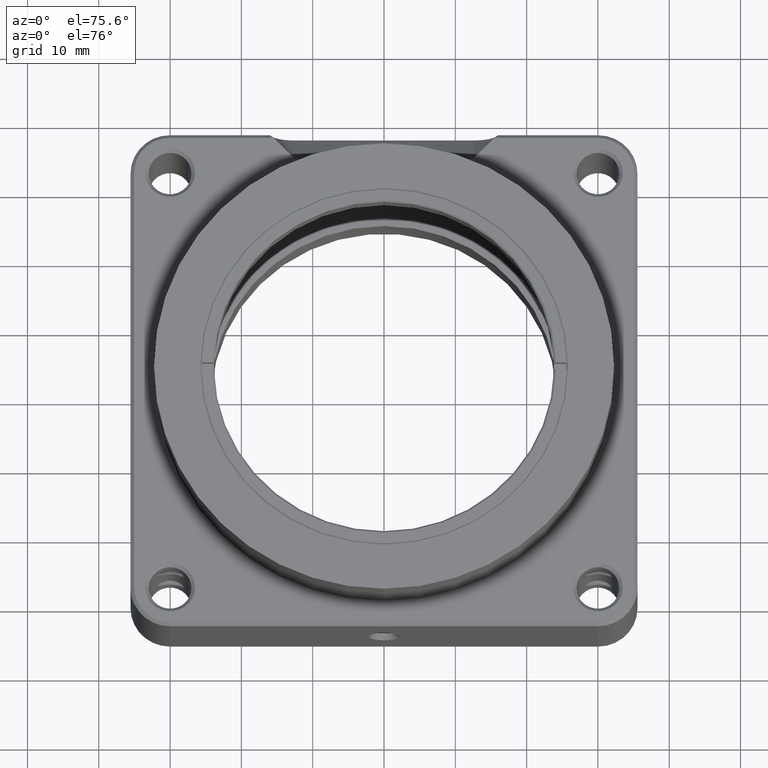
[diagram: clean part render]
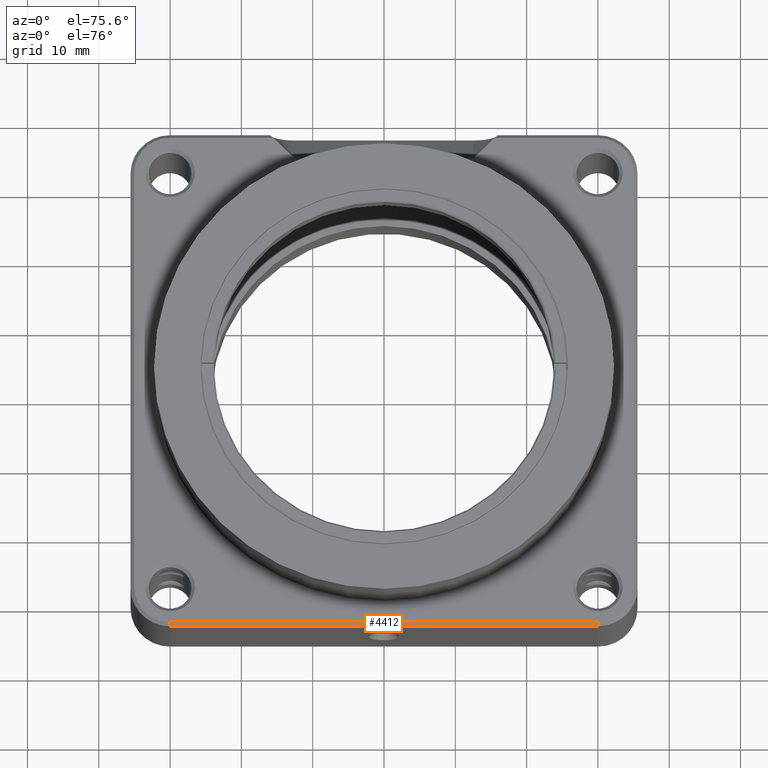
[diagram: same view with one face highlighted and labeled with its STEP entity id]
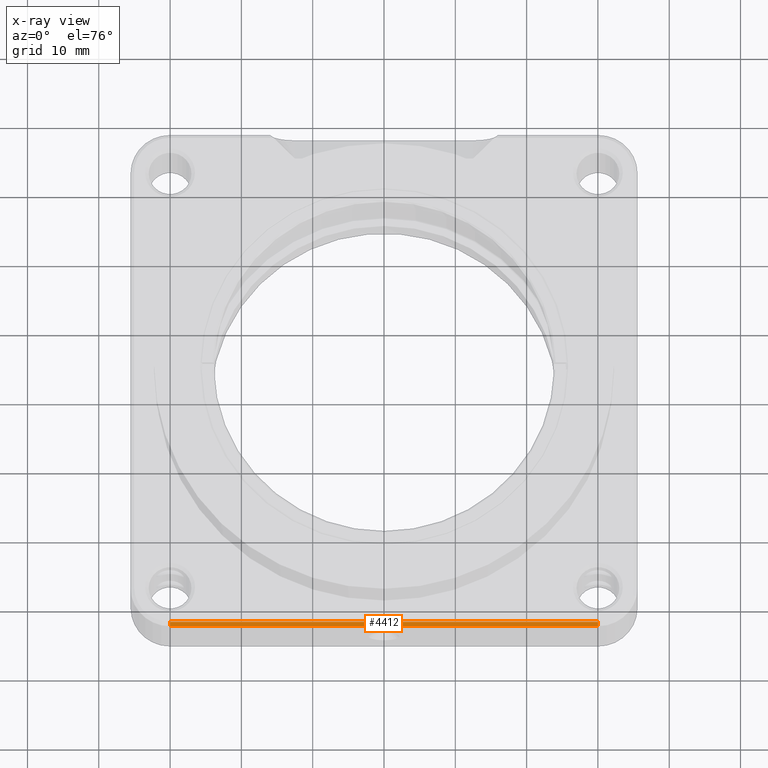
[diagram: x-ray of the same camera — body ghosted, the highlighted face saturated]
A machine part, auxiliary view. The second image highlights one B-rep face of the part: STEP entity #4412.
The next image is the same camera in x-ray: the body ghosted, the highlighted face saturated — about 0% of this face is hidden behind the body in this view.
In plain terms, the highlighted planar face has unit normal (-0, -0.7071, 0.7071).
Its self-contained STEP definition (entity closure, byte-faithful):
#1706 = CARTESIAN_POINT ( 'NONE',  ( -29.99999999999999289, -35.55000000000000426, 5.749999999999985789 ) ) ;
#1851 = VECTOR ( 'NONE', #5624, 1000.000000000000000 ) ;
#2480 = CARTESIAN_POINT ( 'NONE',  ( 0.000000000000000000, -35.04999999999999005, 6.250000000000000000 ) ) ;
#3139 = LINE ( 'NONE', #5342, #13096 ) ;
#3252 = CARTESIAN_POINT ( 'NONE',  ( 30.00000000000000711, -35.04999999999999005, 6.250000000000000000 ) ) ;
#3754 = VECTOR ( 'NONE', #6993, 1000.000000000000114 ) ;
#4236 = VERTEX_POINT ( 'NONE', #7405 ) ;
#4412 = ADVANCED_FACE ( 'NONE', ( #14187 ), #7876, .T. ) ;
#4684 = EDGE_CURVE ( 'NONE', #11903, #6975, #3139, .T. ) ;
#4750 = CARTESIAN_POINT ( 'NONE',  ( 30.00000000000000711, -35.55000000000000426, 5.749999999999985789 ) ) ;
#5201 = LINE ( 'NONE', #8413, #11343 ) ;
#5342 = CARTESIAN_POINT ( 'NONE',  ( -29.99999999999999289, -35.55000000000000426, 5.749999999999985789 ) ) ;
#5624 = DIRECTION ( 'NONE',  ( -1.000000000000000000, 0.000000000000000000, 0.000000000000000000 ) ) ;
#5708 = DIRECTION ( 'NONE',  ( -0.000000000000000000, -0.7071067811865475727, 0.7071067811865475727 ) ) ;
#5777 = EDGE_CURVE ( 'NONE', #4236, #11903, #8015, .T. ) ;
#6293 = EDGE_CURVE ( 'NONE', #6975, #11579, #5201, .T. ) ;
#6975 = VERTEX_POINT ( 'NONE', #12466 ) ;
#6993 = DIRECTION ( 'NONE',  ( 0.000000000000000000, 0.7071067811865474617, 0.7071067811865474617 ) ) ;
#7405 = CARTESIAN_POINT ( 'NONE',  ( 30.00000000000000711, -35.55000000000000426, 5.749999999999985789 ) ) ;
#7794 = EDGE_LOOP ( 'NONE', ( #9968, #14081, #8073, #12934 ) ) ;
#7876 = PLANE ( 'NONE',  #10478 ) ;
#8015 = LINE ( 'NONE', #9884, #1851 ) ;
#8073 = ORIENTED_EDGE ( 'NONE', *, *, #4684, .F. ) ;
#8282 = DIRECTION ( 'NONE',  ( 1.000000000000000000, 0.000000000000000000, 0.000000000000000000 ) ) ;
#8413 = CARTESIAN_POINT ( 'NONE',  ( 30.00000000000000711, -35.04999999999999005, 6.250000000000000000 ) ) ;
#8631 = DIRECTION ( 'NONE',  ( 0.000000000000000000, 0.7071067811865474617, 0.7071067811865474617 ) ) ;
#9585 = LINE ( 'NONE', #4750, #3754 ) ;
#9884 = CARTESIAN_POINT ( 'NONE',  ( -29.99999999999999289, -35.55000000000000426, 5.749999999999985789 ) ) ;
#9968 = ORIENTED_EDGE ( 'NONE', *, *, #10977, .T. ) ;
#10478 = AXIS2_PLACEMENT_3D ( 'NONE', #2480, #5708, #11159 ) ;
#10977 = EDGE_CURVE ( 'NONE', #4236, #11579, #9585, .T. ) ;
#11159 = DIRECTION ( 'NONE',  ( -1.000000000000000000, 0.000000000000000000, -0.000000000000000000 ) ) ;
#11343 = VECTOR ( 'NONE', #8282, 1000.000000000000000 ) ;
#11579 = VERTEX_POINT ( 'NONE', #3252 ) ;
#11903 = VERTEX_POINT ( 'NONE', #1706 ) ;
#12466 = CARTESIAN_POINT ( 'NONE',  ( -29.99999999999999289, -35.04999999999999005, 6.250000000000000000 ) ) ;
#12934 = ORIENTED_EDGE ( 'NONE', *, *, #5777, .F. ) ;
#13096 = VECTOR ( 'NONE', #8631, 1000.000000000000114 ) ;
#14081 = ORIENTED_EDGE ( 'NONE', *, *, #6293, .F. ) ;
#14187 = FACE_OUTER_BOUND ( 'NONE', #7794, .T. ) ;